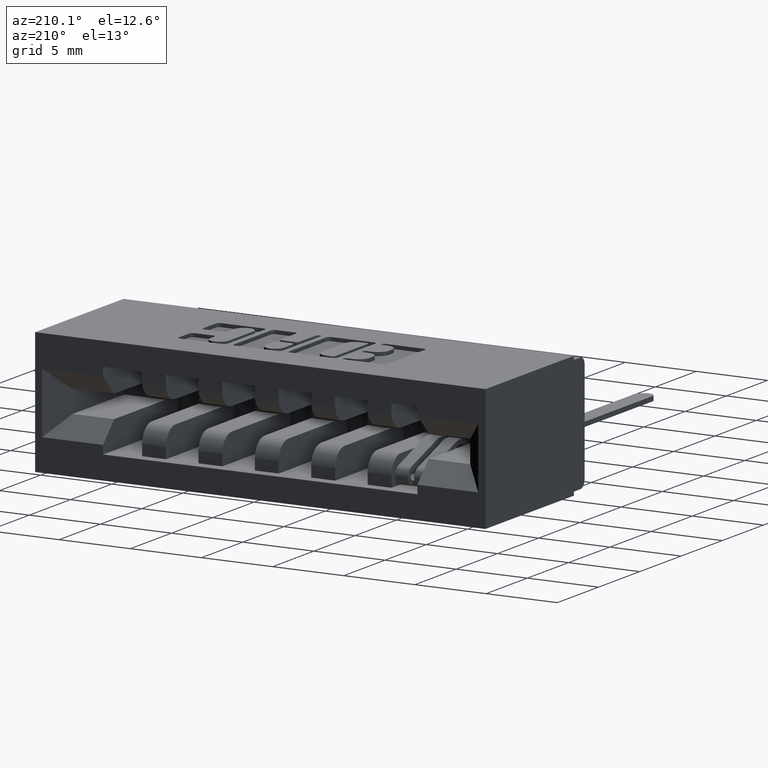
[diagram: clean part render]
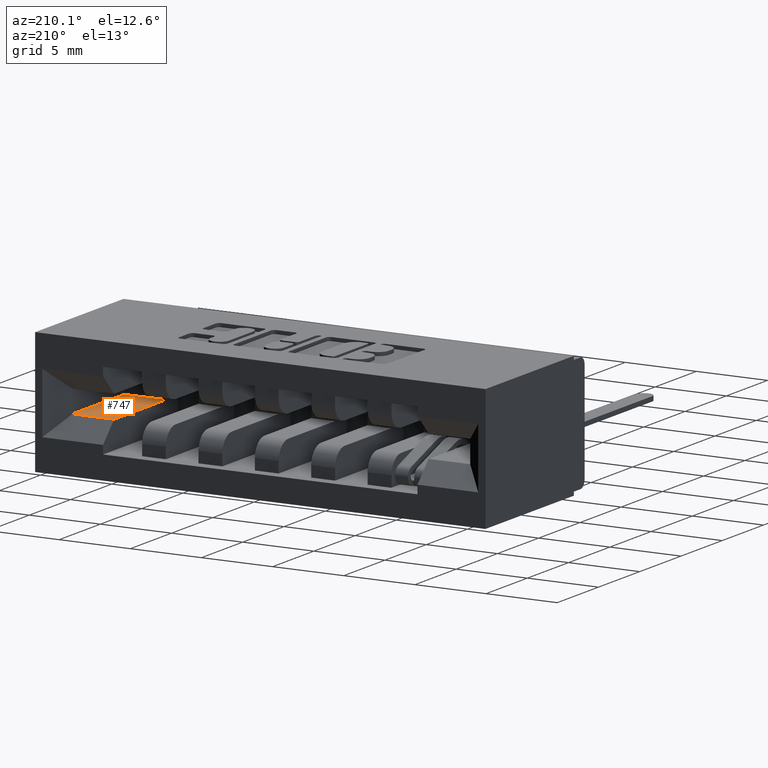
[diagram: same view with one face highlighted and labeled with its STEP entity id]
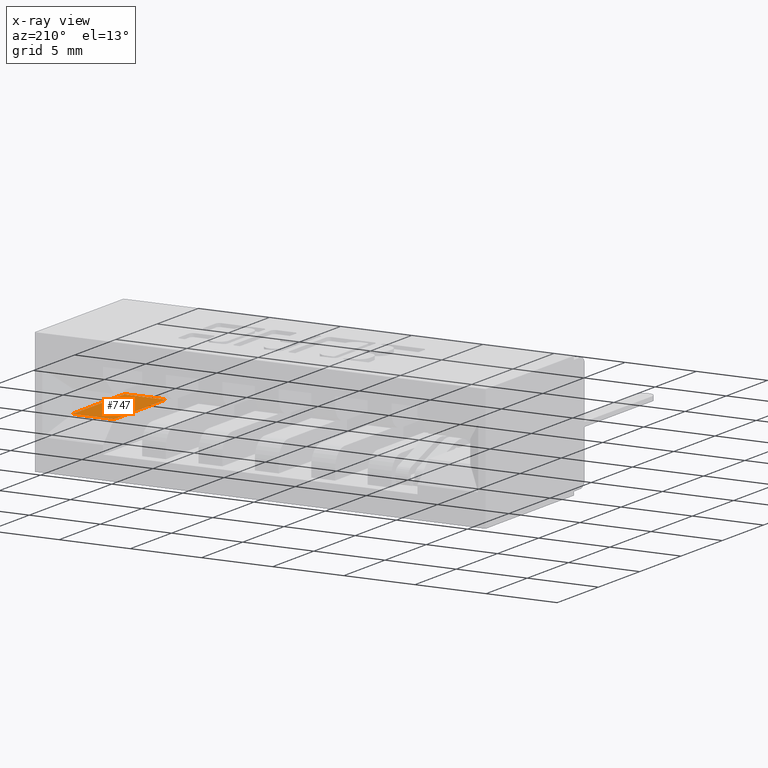
[diagram: x-ray of the same camera — body ghosted, the highlighted face saturated]
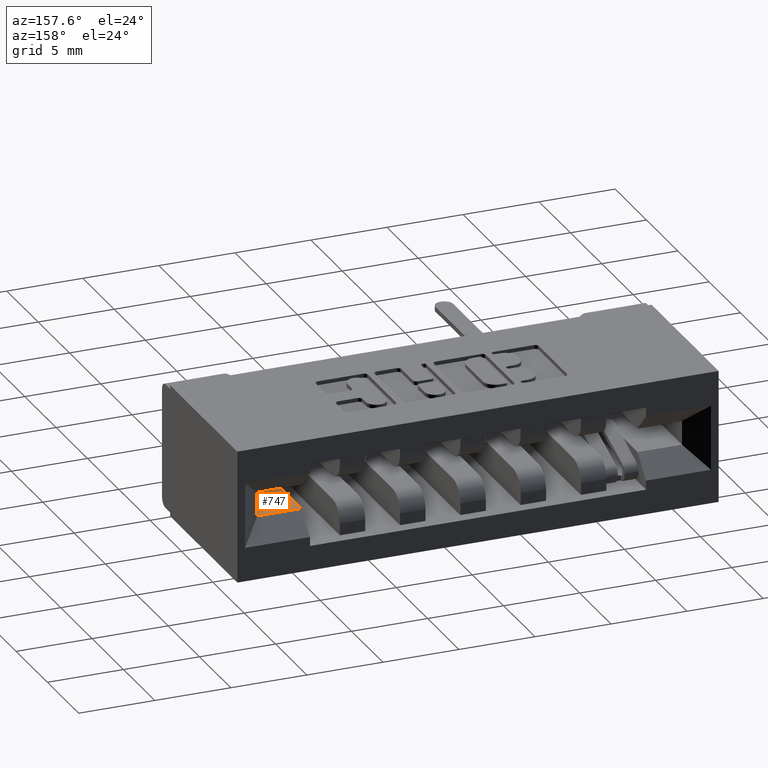
[diagram: same view with one face highlighted and labeled with its STEP entity id]
A machine part, auxiliary view. The second image highlights one B-rep face of the part: STEP entity #747.
The next image is the same camera in x-ray: the body ghosted, the highlighted face saturated — about 0% of this face is hidden behind the body in this view.
A second angle (auxiliary view) of the same face is appended — the face is thin or edge-on in the first view.
In plain terms, the highlighted planar face has unit normal (0, 0, -1).
Its self-contained STEP definition (entity closure, byte-faithful):
#516 = CARTESIAN_POINT ( 'NONE',  ( 0.3709999999999996600, 0.1730000000000000100, -0.2025000000000001000 ) ) ;
#747 = ADVANCED_FACE ( 'NONE', ( #7857 ), #4892, .F. ) ;
#1641 = CARTESIAN_POINT ( 'NONE',  ( 1.356000000000000300, 0.1730000000000000100, -0.2025000000000001000 ) ) ;
#2307 = LINE ( 'NONE', #4602, #5892 ) ;
#2694 = DIRECTION ( 'NONE',  ( -1.000000000000000000, -0.0000000000000000000, -0.0000000000000000000 ) ) ;
#2710 = DIRECTION ( 'NONE',  ( 0.0000000000000000000, 0.0000000000000000000, -1.000000000000000000 ) ) ;
#2826 = EDGE_LOOP ( 'NONE', ( #7205, #7215, #7231, #7243 ) ) ;
#3029 = CARTESIAN_POINT ( 'NONE',  ( 1.356000000000000500, 0.1730000000000000100, -0.2025000000000001000 ) ) ;
#3523 = VERTEX_POINT ( 'NONE', #7010 ) ;
#3761 = VERTEX_POINT ( 'NONE', #1641 ) ;
#3780 = VECTOR ( 'NONE', #2694, 39.37007874015748100 ) ;
#4188 = CARTESIAN_POINT ( 'NONE',  ( 1.471000000000000800, 0.1730000000000000100, -0.2025000000000001000 ) ) ;
#4361 = DIRECTION ( 'NONE',  ( 0.0000000000000000000, -1.000000000000000000, 0.0000000000000000000 ) ) ;
#4576 = DIRECTION ( 'NONE',  ( -0.0000000000000000000, 1.000000000000000000, -0.0000000000000000000 ) ) ;
#4602 = CARTESIAN_POINT ( 'NONE',  ( 1.471000000000000800, 0.1730000000000000100, -0.2025000000000001000 ) ) ;
#4892 = PLANE ( 'NONE',  #7890 ) ;
#5347 = VERTEX_POINT ( 'NONE', #4188 ) ;
#5892 = VECTOR ( 'NONE', #4576, 39.37007874015748100 ) ;
#5983 = LINE ( 'NONE', #7674, #8957 ) ;
#6130 = CARTESIAN_POINT ( 'NONE',  ( 0.3709999999999996600, 0.1730000000000000100, -0.2025000000000001000 ) ) ;
#6291 = VERTEX_POINT ( 'NONE', #8674 ) ;
#6840 = DIRECTION ( 'NONE',  ( -1.000000000000000000, 0.0000000000000000000, -0.0000000000000000000 ) ) ;
#7010 = CARTESIAN_POINT ( 'NONE',  ( 1.471000000000000800, 0.4199999999999997100, -0.2025000000000001000 ) ) ;
#7205 = ORIENTED_EDGE ( 'NONE', *, *, #8692, .T. ) ;
#7215 = ORIENTED_EDGE ( 'NONE', *, *, #8773, .T. ) ;
#7231 = ORIENTED_EDGE ( 'NONE', *, *, #8862, .T. ) ;
#7243 = ORIENTED_EDGE ( 'NONE', *, *, #8863, .F. ) ;
#7339 = VECTOR ( 'NONE', #4361, 39.37007874015748100 ) ;
#7516 = LINE ( 'NONE', #3029, #7339 ) ;
#7589 = DIRECTION ( 'NONE',  ( -1.000000000000000000, 0.0000000000000000000, 0.0000000000000000000 ) ) ;
#7674 = CARTESIAN_POINT ( 'NONE',  ( 0.3709999999999996600, 0.4199999999999997600, -0.2025000000000001000 ) ) ;
#7857 = FACE_OUTER_BOUND ( 'NONE', #2826, .T. ) ;
#7890 = AXIS2_PLACEMENT_3D ( 'NONE', #6130, #2710, #6840 ) ;
#8674 = CARTESIAN_POINT ( 'NONE',  ( 1.356000000000000500, 0.4199999999999997600, -0.2025000000000001000 ) ) ;
#8692 = EDGE_CURVE ( 'NONE', #5347, #3523, #2307, .T. ) ;
#8773 = EDGE_CURVE ( 'NONE', #3523, #6291, #5983, .T. ) ;
#8862 = EDGE_CURVE ( 'NONE', #6291, #3761, #7516, .T. ) ;
#8863 = EDGE_CURVE ( 'NONE', #5347, #3761, #8865, .T. ) ;
#8865 = LINE ( 'NONE', #516, #3780 ) ;
#8957 = VECTOR ( 'NONE', #7589, 39.37007874015748100 ) ;